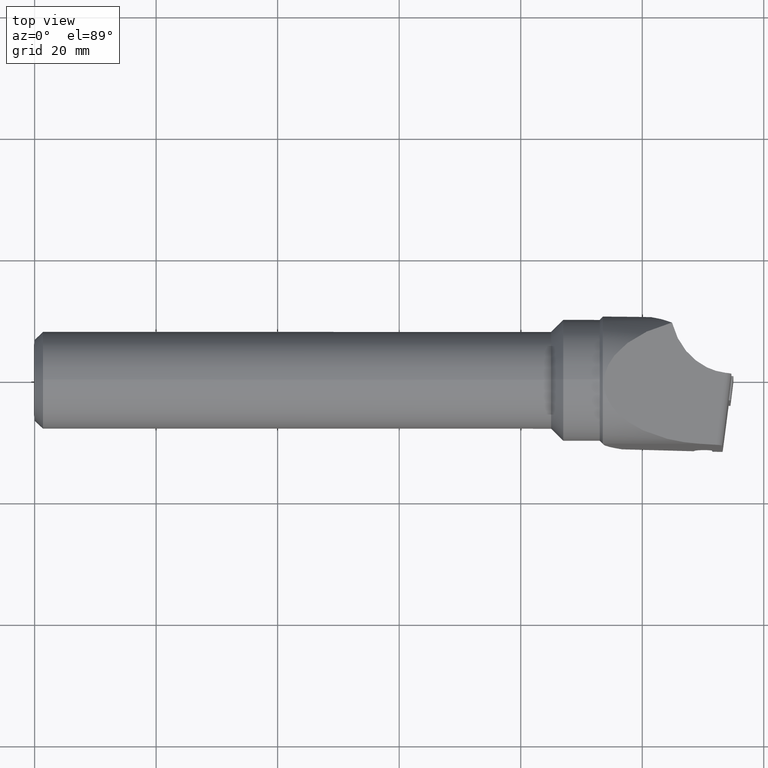
[diagram: clean part render]
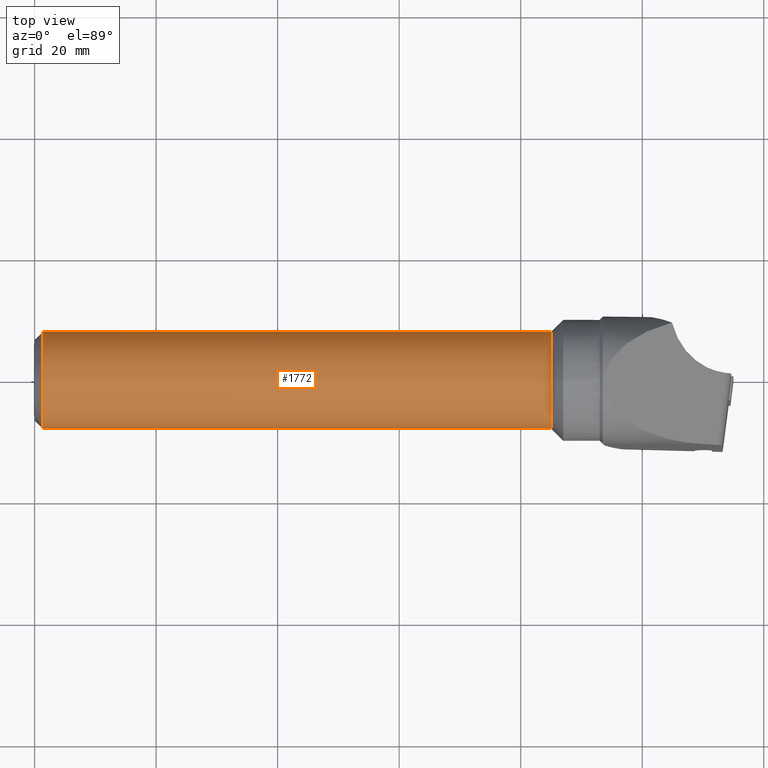
[diagram: same view with one face highlighted and labeled with its STEP entity id]
A machine part, top view. The second image highlights one B-rep face of the part: STEP entity #1772.
In plain terms, the highlighted cylindrical surface (bore or boss wall) has radius 8 mm, axis along (-1, -0, -0).
Its self-contained STEP definition (entity closure, byte-faithful):
#13 = EDGE_CURVE ( 'NONE', #2423, #2423, #3557, .T. ) ;
#42 = VERTEX_POINT ( 'NONE', #1413 ) ;
#93 = CARTESIAN_POINT ( 'NONE',  ( 24.00000000000000000, -5.055689863905819000, -6.199999999999997500 ) ) ;
#113 = ORIENTED_EDGE ( 'NONE', *, *, #2062, .T. ) ;
#147 = CARTESIAN_POINT ( 'NONE',  ( 16.00000000000000000, 5.055689863905817200, -6.199999999999997500 ) ) ;
#158 = CARTESIAN_POINT ( 'NONE',  ( 1.374999999999999600, -5.055689863905819000, -6.199999999999997500 ) ) ;
#184 = VERTEX_POINT ( 'NONE', #903 ) ;
#209 = CARTESIAN_POINT ( 'NONE',  ( 85.00000000000000000, 0.0000000000000000000, 0.0000000000000000000 ) ) ;
#218 = AXIS2_PLACEMENT_3D ( 'NONE', #1166, #1804, #872 ) ;
#253 = EDGE_CURVE ( 'NONE', #1364, #433, #3373, .T. ) ;
#262 = DIRECTION ( 'NONE',  ( -1.000000000000000000, -0.0000000000000000000, -0.0000000000000000000 ) ) ;
#308 = EDGE_LOOP ( 'NONE', ( #492, #1283, #2933, #449 ) ) ;
#309 = CARTESIAN_POINT ( 'NONE',  ( 70.00588235294121400, 1.982623476041494700, -8.705882352941179300 ) ) ;
#328 = CARTESIAN_POINT ( 'NONE',  ( 45.00000000000000000, -5.055689863905811900, -6.199999999999997500 ) ) ;
#330 = EDGE_CURVE ( 'NONE', #2685, #2151, #2630, .T. ) ;
#411 = EDGE_CURVE ( 'NONE', #2730, #2884, #3283, .T. ) ;
#433 = VERTEX_POINT ( 'NONE', #93 ) ;
#449 = ORIENTED_EDGE ( 'NONE', *, *, #3772, .T. ) ;
#461 = CARTESIAN_POINT ( 'NONE',  ( 13.49411764705879700, -1.982623476041497100, -8.705882352941179300 ) ) ;
#472 = VERTEX_POINT ( 'NONE', #2844 ) ;
#492 = ORIENTED_EDGE ( 'NONE', *, *, #907, .T. ) ;
#498 = CARTESIAN_POINT ( 'NONE',  ( 55.50588235294120700, -1.982623476041498500, -8.705882352941179300 ) ) ;
#502 = CIRCLE ( 'NONE', #1824, 8.000000000000000000 ) ;
#503 = EDGE_CURVE ( 'NONE', #1249, #2685, #3198, .T. ) ;
#507 = CARTESIAN_POINT ( 'NONE',  ( -3.175455607189902700, 5.055689863905819000, -6.199999999999997500 ) ) ;
#517 = CARTESIAN_POINT ( 'NONE',  ( 59.50000000000000700, -5.055689863905817200, -6.199999999999997500 ) ) ;
#547 = EDGE_CURVE ( 'NONE', #184, #2730, #1313, .T. ) ;
#634 = FACE_BOUND ( 'NONE', #2552, .T. ) ;
#641 = ORIENTED_EDGE ( 'NONE', *, *, #2875, .T. ) ;
#644 =( BOUNDED_CURVE ( )  B_SPLINE_CURVE ( 3, ( #2665, #852, #1780, #3881 ),
 .UNSPECIFIED., .F., .F. ) 
 B_SPLINE_CURVE_WITH_KNOTS ( ( 4, 4 ),
 ( 2.457511421794463600, 3.825673885385122700 ),
 .UNSPECIFIED. ) 
 CURVE ( )  GEOMETRIC_REPRESENTATION_ITEM ( )  RATIONAL_B_SPLINE_CURVE ( ( 1.000000000000000000, 0.8499999999999998700, 0.8499999999999998700, 1.000000000000000000 ) ) 
 REPRESENTATION_ITEM ( '' )  );
#677 = CARTESIAN_POINT ( 'NONE',  ( 85.00000000000000000, 0.0000000000000000000, 8.000000000000000000 ) ) ;
#714 = EDGE_CURVE ( 'NONE', #3525, #1249, #1506, .T. ) ;
#717 = LINE ( 'NONE', #1941, #3588 ) ;
#718 = CARTESIAN_POINT ( 'NONE',  ( -3.175455607189903200, -5.055689863905819000, -6.199999999999997500 ) ) ;
#731 = DIRECTION ( 'NONE',  ( 1.000000000000000000, 0.0000000000000000000, 0.0000000000000000000 ) ) ;
#735 = CARTESIAN_POINT ( 'NONE',  ( -3.175455607189903200, 5.055689863905819000, -6.199999999999997500 ) ) ;
#781 = VECTOR ( 'NONE', #3815, 1000.000000000000000 ) ;
#805 = CARTESIAN_POINT ( 'NONE',  ( 9.499999999999998200, 5.055689863905817200, -6.199999999999996600 ) ) ;
#819 = LINE ( 'NONE', #3073, #863 ) ;
#852 = CARTESIAN_POINT ( 'NONE',  ( 26.50588235294121400, -1.982623476041498500, -8.705882352941179300 ) ) ;
#856 = DIRECTION ( 'NONE',  ( 0.0000000000000000000, 0.0000000000000000000, 1.000000000000000000 ) ) ;
#863 = VECTOR ( 'NONE', #3710, 1000.000000000000000 ) ;
#872 = DIRECTION ( 'NONE',  ( 0.0000000000000000000, 0.0000000000000000000, 1.000000000000000000 ) ) ;
#877 = VERTEX_POINT ( 'NONE', #3070 ) ;
#883 = CARTESIAN_POINT ( 'NONE',  ( 12.00588235294117600, -1.982623476041501400, -8.705882352941177500 ) ) ;
#903 = CARTESIAN_POINT ( 'NONE',  ( 59.50000000000000700, 5.055689863905817200, -6.199999999999997500 ) ) ;
#907 = EDGE_CURVE ( 'NONE', #2595, #3385, #3424, .T. ) ;
#946 = DIRECTION ( 'NONE',  ( 1.000000000000000000, 0.0000000000000000000, 0.0000000000000000000 ) ) ;
#977 = CARTESIAN_POINT ( 'NONE',  ( 42.49411764705880800, 1.982623476041495600, -8.705882352941175700 ) ) ;
#1020 = VECTOR ( 'NONE', #2241, 1000.000000000000000 ) ;
#1021 =( BOUNDED_CURVE ( )  B_SPLINE_CURVE ( 3, ( #2517, #1329, #3793, #2313 ),
 .UNSPECIFIED., .F., .F. ) 
 B_SPLINE_CURVE_WITH_KNOTS ( ( 4, 4 ),
 ( 2.457511421794463600, 3.825673885385122700 ),
 .UNSPECIFIED. ) 
 CURVE ( )  GEOMETRIC_REPRESENTATION_ITEM ( )  RATIONAL_B_SPLINE_CURVE ( ( 1.000000000000000000, 0.8499999999999998700, 0.8499999999999998700, 1.000000000000000000 ) ) 
 REPRESENTATION_ITEM ( '' )  );
#1030 = ORIENTED_EDGE ( 'NONE', *, *, #330, .T. ) ;
#1056 = CARTESIAN_POINT ( 'NONE',  ( 16.00000000000000000, -5.055689863905819000, -6.199999999999997500 ) ) ;
#1091 = CARTESIAN_POINT ( 'NONE',  ( 56.99411764705881500, -1.982623476041497100, -8.705882352941179300 ) ) ;
#1166 = CARTESIAN_POINT ( 'NONE',  ( -3.175455607189903200, 0.0000000000000000000, 0.0000000000000000000 ) ) ;
#1200 = CARTESIAN_POINT ( 'NONE',  ( 30.50000000000000000, -5.055689863905817200, -6.199999999999997500 ) ) ;
#1233 = EDGE_LOOP ( 'NONE', ( #2928, #1924, #113, #3152 ) ) ;
#1249 = VERTEX_POINT ( 'NONE', #1307 ) ;
#1254 = CARTESIAN_POINT ( 'NONE',  ( 67.50000000000000000, -5.055689863905819000, -6.199999999999997500 ) ) ;
#1273 = ORIENTED_EDGE ( 'NONE', *, *, #3202, .T. ) ;
#1275 = ORIENTED_EDGE ( 'NONE', *, *, #3137, .T. ) ;
#1283 = ORIENTED_EDGE ( 'NONE', *, *, #2593, .T. ) ;
#1303 = FACE_BOUND ( 'NONE', #308, .T. ) ;
#1307 = CARTESIAN_POINT ( 'NONE',  ( 53.00000000000000700, -5.055689863905819000, -6.199999999999997500 ) ) ;
#1313 =( BOUNDED_CURVE ( )  B_SPLINE_CURVE ( 3, ( #1650, #3193, #1091, #2270 ),
 .UNSPECIFIED., .F., .F. ) 
 B_SPLINE_CURVE_WITH_KNOTS ( ( 4, 4 ),
 ( 5.599104075384256700, 6.967266538974915800 ),
 .UNSPECIFIED. ) 
 CURVE ( )  GEOMETRIC_REPRESENTATION_ITEM ( )  RATIONAL_B_SPLINE_CURVE ( ( 1.000000000000000000, 0.8499999999999998700, 0.8499999999999998700, 1.000000000000000000 ) ) 
 REPRESENTATION_ITEM ( '' )  );
#1324 = CARTESIAN_POINT ( 'NONE',  ( -3.175455607189903200, -5.055689863905819000, -6.199999999999997500 ) ) ;
#1329 = CARTESIAN_POINT ( 'NONE',  ( 41.00588235294120700, -1.982623476041498500, -8.705882352941179300 ) ) ;
#1355 = CARTESIAN_POINT ( 'NONE',  ( 53.00000000000000700, 5.055689863905817200, -6.199999999999997500 ) ) ;
#1364 = VERTEX_POINT ( 'NONE', #1056 ) ;
#1374 = EDGE_LOOP ( 'NONE', ( #1607, #1381, #1565, #3570 ) ) ;
#1376 = CARTESIAN_POINT ( 'NONE',  ( 53.00000000000000700, 5.055689863905817200, -6.199999999999997500 ) ) ;
#1381 = ORIENTED_EDGE ( 'NONE', *, *, #3751, .T. ) ;
#1389 = VERTEX_POINT ( 'NONE', #2870 ) ;
#1413 = CARTESIAN_POINT ( 'NONE',  ( 9.499999999999998200, -5.055689863905819000, -6.199999999999996600 ) ) ;
#1445 =( BOUNDED_CURVE ( )  B_SPLINE_CURVE ( 3, ( #147, #1694, #461, #3213 ),
 .UNSPECIFIED., .F., .F. ) 
 B_SPLINE_CURVE_WITH_KNOTS ( ( 4, 4 ),
 ( 5.599104075384256700, 6.967266538974915800 ),
 .UNSPECIFIED. ) 
 CURVE ( )  GEOMETRIC_REPRESENTATION_ITEM ( )  RATIONAL_B_SPLINE_CURVE ( ( 1.000000000000000000, 0.8499999999999998700, 0.8499999999999998700, 1.000000000000000000 ) ) 
 REPRESENTATION_ITEM ( '' )  );
#1467 = CARTESIAN_POINT ( 'NONE',  ( 67.50000000000000000, 5.055689863905817200, -6.199999999999997500 ) ) ;
#1480 = CARTESIAN_POINT ( 'NONE',  ( 45.00000000000000000, -5.055689863905811900, -6.199999999999997500 ) ) ;
#1506 = LINE ( 'NONE', #1768, #781 ) ;
#1549 = FACE_BOUND ( 'NONE', #1374, .T. ) ;
#1565 = ORIENTED_EDGE ( 'NONE', *, *, #3696, .T. ) ;
#1582 =( BOUNDED_CURVE ( )  B_SPLINE_CURVE ( 3, ( #3622, #883, #3302, #3888 ),
 .UNSPECIFIED., .F., .F. ) 
 B_SPLINE_CURVE_WITH_KNOTS ( ( 4, 4 ),
 ( 2.457511421794463100, 3.825673885385122700 ),
 .UNSPECIFIED. ) 
 CURVE ( )  GEOMETRIC_REPRESENTATION_ITEM ( )  RATIONAL_B_SPLINE_CURVE ( ( 1.000000000000000000, 0.8499999999999997600, 0.8499999999999997600, 1.000000000000000000 ) ) 
 REPRESENTATION_ITEM ( '' )  );
#1607 = ORIENTED_EDGE ( 'NONE', *, *, #253, .T. ) ;
#1614 = VERTEX_POINT ( 'NONE', #158 ) ;
#1641 = CARTESIAN_POINT ( 'NONE',  ( 38.50000000000000000, -5.055689863905819000, -6.199999999999997500 ) ) ;
#1650 = CARTESIAN_POINT ( 'NONE',  ( 59.50000000000000700, 5.055689863905817200, -6.199999999999997500 ) ) ;
#1689 = CARTESIAN_POINT ( 'NONE',  ( 53.00000000000000700, -5.055689863905819000, -6.199999999999997500 ) ) ;
#1694 = CARTESIAN_POINT ( 'NONE',  ( 13.49411764705879700, 1.982623476041499400, -8.705882352941179300 ) ) ;
#1708 = VERTEX_POINT ( 'NONE', #1991 ) ;
#1723 = DIRECTION ( 'NONE',  ( -1.000000000000000000, -0.0000000000000000000, -0.0000000000000000000 ) ) ;
#1737 =( BOUNDED_CURVE ( )  B_SPLINE_CURVE ( 3, ( #1254, #2169, #309, #1838 ),
 .UNSPECIFIED., .F., .F. ) 
 B_SPLINE_CURVE_WITH_KNOTS ( ( 4, 4 ),
 ( 2.457511421794463100, 3.825673885385122700 ),
 .UNSPECIFIED. ) 
 CURVE ( )  GEOMETRIC_REPRESENTATION_ITEM ( )  RATIONAL_B_SPLINE_CURVE ( ( 1.000000000000000000, 0.8499999999999997600, 0.8499999999999997600, 1.000000000000000000 ) ) 
 REPRESENTATION_ITEM ( '' )  );
#1743 = VECTOR ( 'NONE', #2486, 1000.000000000000000 ) ;
#1754 = DIRECTION ( 'NONE',  ( -1.000000000000000000, -0.0000000000000000000, -0.0000000000000000000 ) ) ;
#1768 = CARTESIAN_POINT ( 'NONE',  ( -3.175455607189903200, -5.055689863905819000, -6.199999999999997500 ) ) ;
#1772 = ADVANCED_FACE ( 'NONE', ( #3466, #634, #1303, #1549, #1869, #1918 ), #3369, .T. ) ;
#1780 = CARTESIAN_POINT ( 'NONE',  ( 26.50588235294120700, 1.982623476041496000, -8.705882352941179300 ) ) ;
#1804 = DIRECTION ( 'NONE',  ( -1.000000000000000000, -0.0000000000000000000, -0.0000000000000000000 ) ) ;
#1824 = AXIS2_PLACEMENT_3D ( 'NONE', #2110, #262, #856 ) ;
#1838 = CARTESIAN_POINT ( 'NONE',  ( 67.50000000000000000, 5.055689863905817200, -6.199999999999997500 ) ) ;
#1843 = CARTESIAN_POINT ( 'NONE',  ( -3.175455607189903200, -5.055689863905819000, -6.199999999999997500 ) ) ;
#1869 = FACE_OUTER_BOUND ( 'NONE', #3691, .T. ) ;
#1881 = ORIENTED_EDGE ( 'NONE', *, *, #2849, .T. ) ;
#1918 = FACE_OUTER_BOUND ( 'NONE', #2275, .T. ) ;
#1924 = ORIENTED_EDGE ( 'NONE', *, *, #1933, .T. ) ;
#1933 = EDGE_CURVE ( 'NONE', #2884, #3740, #1737, .T. ) ;
#1941 = CARTESIAN_POINT ( 'NONE',  ( -3.175455607189903200, 5.055689863905819000, -6.199999999999997500 ) ) ;
#1956 = VECTOR ( 'NONE', #2605, 1000.000000000000000 ) ;
#1979 = CARTESIAN_POINT ( 'NONE',  ( 30.50000000000000000, -5.055689863905817200, -6.199999999999997500 ) ) ;
#1991 = CARTESIAN_POINT ( 'NONE',  ( 30.50000000000000000, 5.055689863905817200, -6.199999999999997500 ) ) ;
#2062 = EDGE_CURVE ( 'NONE', #3740, #184, #819, .T. ) ;
#2110 = CARTESIAN_POINT ( 'NONE',  ( 1.374999999999999600, 0.0000000000000000000, 0.0000000000000000000 ) ) ;
#2151 = VERTEX_POINT ( 'NONE', #3190 ) ;
#2161 = CARTESIAN_POINT ( 'NONE',  ( 67.50000000000000000, -5.055689863905819000, -6.199999999999997500 ) ) ;
#2169 = CARTESIAN_POINT ( 'NONE',  ( 70.00588235294121400, -1.982623476041501400, -8.705882352941177500 ) ) ;
#2238 = ORIENTED_EDGE ( 'NONE', *, *, #13, .T. ) ;
#2241 = DIRECTION ( 'NONE',  ( -1.000000000000000000, -0.0000000000000000000, -0.0000000000000000000 ) ) ;
#2261 = VERTEX_POINT ( 'NONE', #805 ) ;
#2270 = CARTESIAN_POINT ( 'NONE',  ( 59.50000000000000700, -5.055689863905817200, -6.199999999999997500 ) ) ;
#2275 = EDGE_LOOP ( 'NONE', ( #2238 ) ) ;
#2313 = CARTESIAN_POINT ( 'NONE',  ( 38.50000000000000000, 5.055689863905817200, -6.199999999999997500 ) ) ;
#2315 = ORIENTED_EDGE ( 'NONE', *, *, #503, .T. ) ;
#2401 = ORIENTED_EDGE ( 'NONE', *, *, #2416, .F. ) ;
#2416 = EDGE_CURVE ( 'NONE', #1614, #3020, #502, .T. ) ;
#2423 = VERTEX_POINT ( 'NONE', #677 ) ;
#2433 = CARTESIAN_POINT ( 'NONE',  ( 27.99411764705879700, -1.982623476041497100, -8.705882352941179300 ) ) ;
#2467 = CARTESIAN_POINT ( 'NONE',  ( -3.175455607189902700, -5.055689863905819000, -6.199999999999997500 ) ) ;
#2486 = DIRECTION ( 'NONE',  ( 1.000000000000000000, 0.0000000000000000000, 0.0000000000000000000 ) ) ;
#2517 = CARTESIAN_POINT ( 'NONE',  ( 38.50000000000000000, -5.055689863905819000, -6.199999999999997500 ) ) ;
#2522 = AXIS2_PLACEMENT_3D ( 'NONE', #209, #1723, #3820 ) ;
#2552 = EDGE_LOOP ( 'NONE', ( #2597, #2315, #1030, #1881 ) ) ;
#2557 = CARTESIAN_POINT ( 'NONE',  ( 55.50588235294120700, 1.982623476041496000, -8.705882352941179300 ) ) ;
#2593 = EDGE_CURVE ( 'NONE', #3385, #472, #1021, .T. ) ;
#2595 = VERTEX_POINT ( 'NONE', #1979 ) ;
#2597 = ORIENTED_EDGE ( 'NONE', *, *, #714, .T. ) ;
#2605 = DIRECTION ( 'NONE',  ( -1.000000000000000000, -0.0000000000000000000, -0.0000000000000000000 ) ) ;
#2630 = LINE ( 'NONE', #3099, #1020 ) ;
#2647 = EDGE_CURVE ( 'NONE', #1389, #1364, #1445, .T. ) ;
#2665 = CARTESIAN_POINT ( 'NONE',  ( 24.00000000000000000, -5.055689863905819000, -6.199999999999997500 ) ) ;
#2685 = VERTEX_POINT ( 'NONE', #1376 ) ;
#2719 = CARTESIAN_POINT ( 'NONE',  ( 30.50000000000000000, 5.055689863905817200, -6.199999999999997500 ) ) ;
#2730 = VERTEX_POINT ( 'NONE', #517 ) ;
#2844 = CARTESIAN_POINT ( 'NONE',  ( 38.50000000000000000, 5.055689863905817200, -6.199999999999997500 ) ) ;
#2849 = EDGE_CURVE ( 'NONE', #2151, #3525, #3796, .T. ) ;
#2858 = LINE ( 'NONE', #2467, #3083 ) ;
#2870 = CARTESIAN_POINT ( 'NONE',  ( 16.00000000000000000, 5.055689863905817200, -6.199999999999997500 ) ) ;
#2875 = EDGE_CURVE ( 'NONE', #1614, #42, #2858, .T. ) ;
#2884 = VERTEX_POINT ( 'NONE', #2161 ) ;
#2928 = ORIENTED_EDGE ( 'NONE', *, *, #411, .T. ) ;
#2933 = ORIENTED_EDGE ( 'NONE', *, *, #3040, .T. ) ;
#3020 = VERTEX_POINT ( 'NONE', #3206 ) ;
#3036 = LINE ( 'NONE', #507, #3128 ) ;
#3037 = CARTESIAN_POINT ( 'NONE',  ( 45.00000000000000000, 5.055689863905810100, -6.199999999999997500 ) ) ;
#3040 = EDGE_CURVE ( 'NONE', #472, #1708, #3544, .T. ) ;
#3070 = CARTESIAN_POINT ( 'NONE',  ( 24.00000000000000000, 5.055689863905817200, -6.199999999999997500 ) ) ;
#3073 = CARTESIAN_POINT ( 'NONE',  ( -3.175455607189903200, 5.055689863905819000, -6.199999999999997500 ) ) ;
#3083 = VECTOR ( 'NONE', #3371, 1000.000000000000000 ) ;
#3099 = CARTESIAN_POINT ( 'NONE',  ( -3.175455607189903200, 5.055689863905819000, -6.199999999999997500 ) ) ;
#3128 = VECTOR ( 'NONE', #1754, 1000.000000000000000 ) ;
#3137 = EDGE_CURVE ( 'NONE', #2261, #3020, #3036, .T. ) ;
#3143 = DIRECTION ( 'NONE',  ( -1.000000000000000000, -0.0000000000000000000, -0.0000000000000000000 ) ) ;
#3152 = ORIENTED_EDGE ( 'NONE', *, *, #547, .T. ) ;
#3190 = CARTESIAN_POINT ( 'NONE',  ( 45.00000000000000000, 5.055689863905810100, -6.199999999999997500 ) ) ;
#3193 = CARTESIAN_POINT ( 'NONE',  ( 56.99411764705881500, 1.982623476041499400, -8.705882352941179300 ) ) ;
#3198 =( BOUNDED_CURVE ( )  B_SPLINE_CURVE ( 3, ( #1689, #498, #2557, #1355 ),
 .UNSPECIFIED., .F., .F. ) 
 B_SPLINE_CURVE_WITH_KNOTS ( ( 4, 4 ),
 ( 2.457511421794463600, 3.825673885385122700 ),
 .UNSPECIFIED. ) 
 CURVE ( )  GEOMETRIC_REPRESENTATION_ITEM ( )  RATIONAL_B_SPLINE_CURVE ( ( 1.000000000000000000, 0.8499999999999998700, 0.8499999999999998700, 1.000000000000000000 ) ) 
 REPRESENTATION_ITEM ( '' )  );
#3202 = EDGE_CURVE ( 'NONE', #42, #2261, #1582, .T. ) ;
#3206 = CARTESIAN_POINT ( 'NONE',  ( 1.375000000000003600, 5.055689863905846500, -6.199999999999997500 ) ) ;
#3213 = CARTESIAN_POINT ( 'NONE',  ( 16.00000000000000000, -5.055689863905819000, -6.199999999999997500 ) ) ;
#3283 = LINE ( 'NONE', #1324, #1743 ) ;
#3302 = CARTESIAN_POINT ( 'NONE',  ( 12.00588235294117600, 1.982623476041494700, -8.705882352941179300 ) ) ;
#3369 = CYLINDRICAL_SURFACE ( 'NONE', #218, 8.000000000000000000 ) ;
#3371 = DIRECTION ( 'NONE',  ( 1.000000000000000000, 0.0000000000000000000, 0.0000000000000000000 ) ) ;
#3373 = LINE ( 'NONE', #1843, #3811 ) ;
#3385 = VERTEX_POINT ( 'NONE', #1641 ) ;
#3424 = LINE ( 'NONE', #718, #3605 ) ;
#3466 = FACE_BOUND ( 'NONE', #1233, .T. ) ;
#3525 = VERTEX_POINT ( 'NONE', #1480 ) ;
#3544 = LINE ( 'NONE', #735, #1956 ) ;
#3557 = CIRCLE ( 'NONE', #2522, 8.000000000000000000 ) ;
#3570 = ORIENTED_EDGE ( 'NONE', *, *, #2647, .T. ) ;
#3588 = VECTOR ( 'NONE', #3143, 1000.000000000000000 ) ;
#3599 = CARTESIAN_POINT ( 'NONE',  ( 27.99411764705879700, 1.982623476041499400, -8.705882352941179300 ) ) ;
#3605 = VECTOR ( 'NONE', #731, 1000.000000000000000 ) ;
#3622 = CARTESIAN_POINT ( 'NONE',  ( 9.499999999999998200, -5.055689863905819000, -6.199999999999996600 ) ) ;
#3662 = CARTESIAN_POINT ( 'NONE',  ( 42.49411764705880800, -1.982623476041494200, -8.705882352941175700 ) ) ;
#3691 = EDGE_LOOP ( 'NONE', ( #1273, #1275, #2401, #641 ) ) ;
#3696 = EDGE_CURVE ( 'NONE', #877, #1389, #717, .T. ) ;
#3710 = DIRECTION ( 'NONE',  ( -1.000000000000000000, -0.0000000000000000000, -0.0000000000000000000 ) ) ;
#3740 = VERTEX_POINT ( 'NONE', #1467 ) ;
#3751 = EDGE_CURVE ( 'NONE', #433, #877, #644, .T. ) ;
#3772 = EDGE_CURVE ( 'NONE', #1708, #2595, #3870, .T. ) ;
#3793 = CARTESIAN_POINT ( 'NONE',  ( 41.00588235294120700, 1.982623476041496000, -8.705882352941179300 ) ) ;
#3796 =( BOUNDED_CURVE ( )  B_SPLINE_CURVE ( 3, ( #3037, #977, #3662, #328 ),
 .UNSPECIFIED., .F., .F. ) 
 B_SPLINE_CURVE_WITH_KNOTS ( ( 4, 4 ),
 ( 5.599104075384257600, 6.967266538974914900 ),
 .UNSPECIFIED. ) 
 CURVE ( )  GEOMETRIC_REPRESENTATION_ITEM ( )  RATIONAL_B_SPLINE_CURVE ( ( 1.000000000000000000, 0.8500000000000002000, 0.8500000000000002000, 1.000000000000000000 ) ) 
 REPRESENTATION_ITEM ( '' )  );
#3811 = VECTOR ( 'NONE', #946, 1000.000000000000000 ) ;
#3815 = DIRECTION ( 'NONE',  ( 1.000000000000000000, 0.0000000000000000000, 0.0000000000000000000 ) ) ;
#3820 = DIRECTION ( 'NONE',  ( 0.0000000000000000000, 0.0000000000000000000, 1.000000000000000000 ) ) ;
#3870 =( BOUNDED_CURVE ( )  B_SPLINE_CURVE ( 3, ( #2719, #3599, #2433, #1200 ),
 .UNSPECIFIED., .F., .F. ) 
 B_SPLINE_CURVE_WITH_KNOTS ( ( 4, 4 ),
 ( 5.599104075384256700, 6.967266538974915800 ),
 .UNSPECIFIED. ) 
 CURVE ( )  GEOMETRIC_REPRESENTATION_ITEM ( )  RATIONAL_B_SPLINE_CURVE ( ( 1.000000000000000000, 0.8499999999999998700, 0.8499999999999998700, 1.000000000000000000 ) ) 
 REPRESENTATION_ITEM ( '' )  );
#3881 = CARTESIAN_POINT ( 'NONE',  ( 24.00000000000000000, 5.055689863905817200, -6.199999999999997500 ) ) ;
#3888 = CARTESIAN_POINT ( 'NONE',  ( 9.499999999999998200, 5.055689863905817200, -6.199999999999996600 ) ) ;